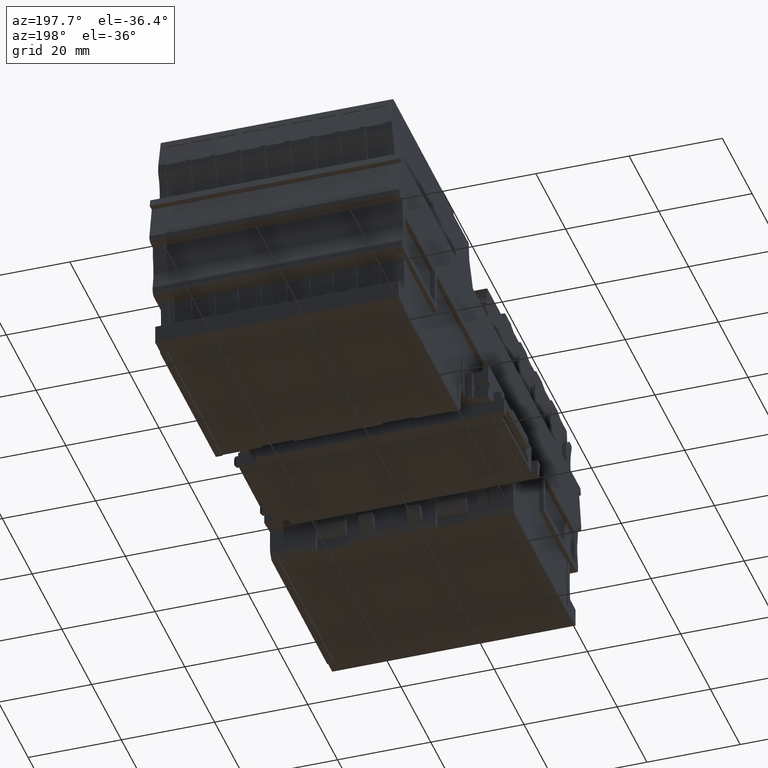
[diagram: clean part render]
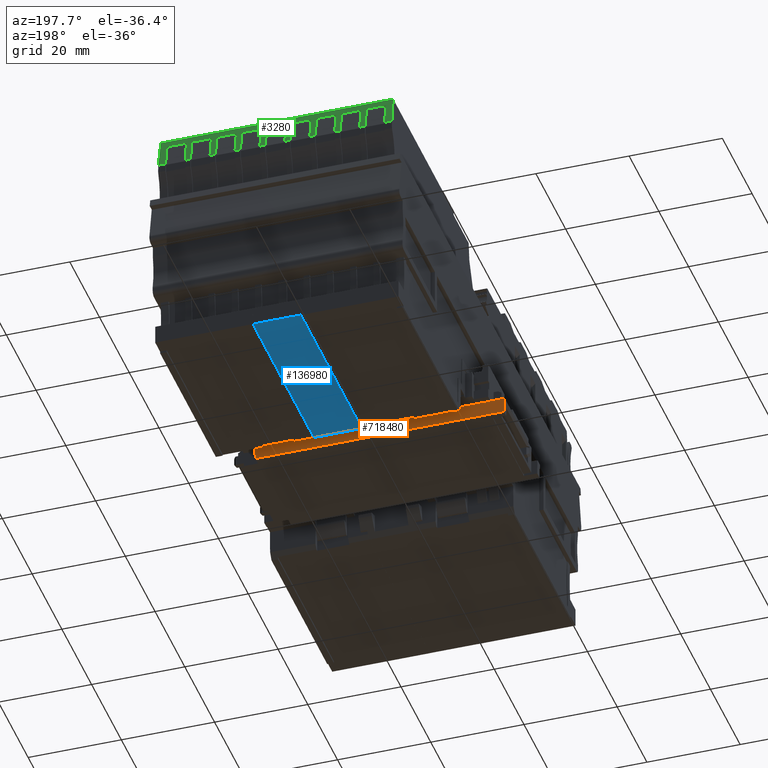
[diagram: same view with three faces highlighted in distinct colors, each labeled with its STEP entity id]
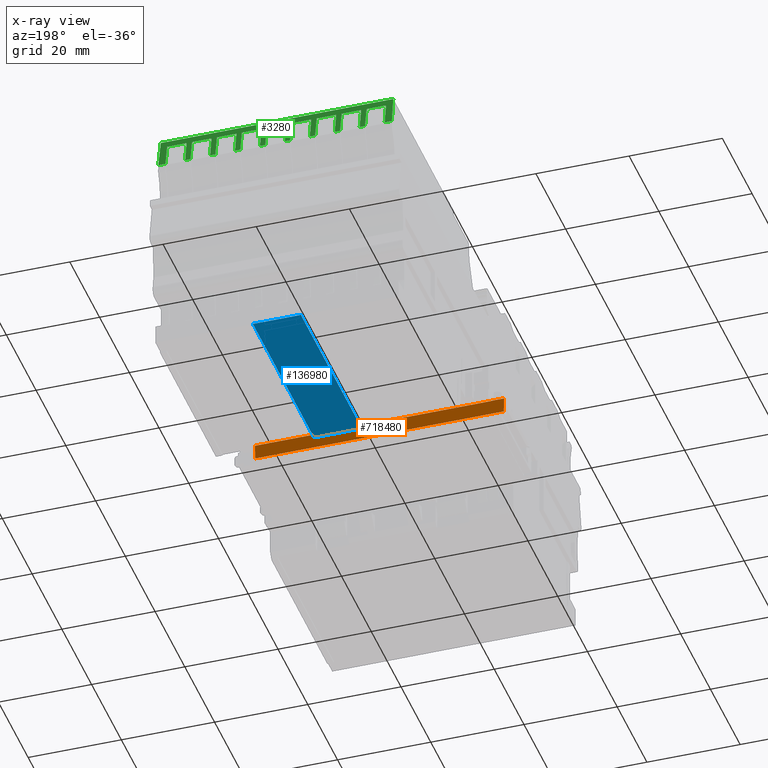
[diagram: x-ray of the same camera — body ghosted, the three highlighted faces saturated]
A machine part, auxiliary view with three faces highlighted in distinct colors.
The next image is the same camera in x-ray (body ghosted, the three faces saturated) — at least one of them is partly hidden behind the body in this view.
Their STEP definitions:

[orange] entity #718480 — the highlighted planar face has unit normal (-0, -1, -0).
#681770=CARTESIAN_POINT('',(-11.9819589819174,-3.69999999999349,
39.49999999986));
#681780=VERTEX_POINT('',#681770);
#681810=CARTESIAN_POINT('',(-11.9819589819181,2.24157943431103,
39.4999999998587));
#681820=DIRECTION('',(1.13686837721616E-13,-1.,1.96306567350832E-13));
#681830=VECTOR('',#681820,1.);
#681840=LINE('',#681810,#681830);
#681850=CARTESIAN_POINT('',(-11.9819589819174,-3.7500000001397,
39.49999999986));
#681860=VERTEX_POINT('',#681850);
#681870=EDGE_CURVE('',#681780,#681860,#681840,.T.);
#717440=CARTESIAN_POINT('',(-11.9819589821331,-7.00000000000997,
-11.0056969653756));
#717450=VERTEX_POINT('',#717440);
#717480=CARTESIAN_POINT('',(-11.981958982074,-7.00000000000997,
2.79999999999967));
#717490=DIRECTION('',(4.27836672665525E-12,-2.48094528084166E-16,1.));
#717500=VECTOR('',#717490,1.);
#717510=LINE('',#717480,#717500);
#717520=CARTESIAN_POINT('',(-11.9819589819049,-7.00000000000998,
42.3423982855966));
#717530=VERTEX_POINT('',#717520);
#717540=EDGE_CURVE('',#717450,#717530,#717510,.T.);
#717730=CARTESIAN_POINT('',(-11.9819589819052,2.24070364158749,
42.5036953676431));
#717740=DIRECTION('',(-3.90017879103866E-14,0.999847695156391,
0.0174524064372838));
#717750=VECTOR('',#717740,1.);
#717760=LINE('',#717730,#717750);
#717770=CARTESIAN_POINT('',(-11.981958981905,-3.69999999999349,
42.39999999986));
#717780=VERTEX_POINT('',#717770);
#717790=EDGE_CURVE('',#717530,#717780,#717760,.T.);
#718060=CARTESIAN_POINT('',(-11.9819589820744,-3.69999999999348,
2.79999999999967));
#718070=DIRECTION('',(-4.27836672665525E-12,2.48094525271832E-16,-1.));
#718080=VECTOR('',#718070,1.);
#718090=LINE('',#718060,#718080);
#718100=EDGE_CURVE('',#717780,#681780,#718090,.T.);
#718230=CARTESIAN_POINT('',(-11.9819589821388,-1.70027890184331,
-12.2000000144005));
#718240=DIRECTION('',(1.,1.13686837721616E-13,-4.27836672665525E-12));
#718250=DIRECTION('',(-4.27836672665525E-12,-7.60989826065005E-17,-1.));
#718260=AXIS2_PLACEMENT_3D('',#718230,#718240,#718250);
#718270=PLANE('',#718260);
#718280=ORIENTED_EDGE('',*,*,#717540,.T.);
#718290=CARTESIAN_POINT('',(-11.9819589821348,2.2407036415875,
-11.1669940474221));
#718300=DIRECTION('',(1.88337193063326E-13,-0.999847695156391,
0.0174524064372836));
#718310=VECTOR('',#718300,1.);
#718320=LINE('',#718290,#718310);
#718330=CARTESIAN_POINT('',(-11.9819589821337,-3.75000000013968,
-11.06242592639));
#718340=VERTEX_POINT('',#718330);
#718350=EDGE_CURVE('',#718340,#717450,#718320,.T.);
#718360=ORIENTED_EDGE('',*,*,#718350,.T.);
#718370=CARTESIAN_POINT('',(-11.9819589820742,-3.75000000013969,
2.79999999999967));
#718380=DIRECTION('',(4.27836672665525E-12,-2.48094533221733E-16,1.));
#718390=VECTOR('',#718380,1.);
#718400=LINE('',#718370,#718390);
#718410=EDGE_CURVE('',#718340,#681860,#718400,.T.);
#718420=ORIENTED_EDGE('',*,*,#718410,.F.);
#718430=ORIENTED_EDGE('',*,*,#681870,.T.);
#718440=ORIENTED_EDGE('',*,*,#718100,.T.);
#718450=ORIENTED_EDGE('',*,*,#717790,.T.);
#718460=EDGE_LOOP('',(#718450,#718440,#718430,#718420,#718360,#718280));
#718470=FACE_OUTER_BOUND('',#718460,.T.);
#718480=ADVANCED_FACE('',(#718470),#718270,.F.);

[blue] entity #136980 — the highlighted planar face has unit normal (-0, -0, -1).
#116380=CARTESIAN_POINT('',(43.3019921497185,-1.08877047973918,
-28.2356879205728));
#116390=VERTEX_POINT('',#116380);
#116980=CARTESIAN_POINT('',(43.3019921494129,-1.08877047978019,
-17.964312029289));
#116990=VERTEX_POINT('',#116980);
#117020=CARTESIAN_POINT('',(43.3019921488783,-1.08877047985192,0.));
#117030=DIRECTION('',(-2.9755266379796E-11,-3.99266373246629E-12,1.));
#117040=VECTOR('',#117030,1.);
#117050=LINE('',#117020,#117040);
#117060=EDGE_CURVE('',#116390,#116990,#117050,.T.);
#119730=CARTESIAN_POINT('',(84.0130941421063,3.9099243022775,0.));
#119740=DIRECTION('',(-7.53248026409569E-12,-5.85695866278797E-13,-1.));
#119750=VECTOR('',#119740,1.);
#119760=LINE('',#119730,#119750);
#119770=CARTESIAN_POINT('',(84.0130941419709,3.90992430226698,
-17.9643120286035));
#119780=VERTEX_POINT('',#119770);
#119790=CARTESIAN_POINT('',(84.0130941418936,3.90992430226097,
-28.235687919424));
#119800=VERTEX_POINT('',#119790);
#119810=EDGE_CURVE('',#119780,#119800,#119760,.T.);
#136590=CARTESIAN_POINT('',(0.,-6.40558657208207,-28.2356879217947));
#136600=DIRECTION('',(0.99254615164127,0.121869343405569,
2.80076634875013E-11));
#136610=VECTOR('',#136600,1.);
#136620=LINE('',#136590,#136610);
#136630=EDGE_CURVE('',#116390,#119800,#136620,.T.);
#136820=CARTESIAN_POINT('',(-13.7160918481336,-8.08971088696673,
-23.099999976854));
#136830=DIRECTION('',(0.121869343405569,-0.99254615164127,
-3.36648245893532E-13));
#136840=DIRECTION('',(-0.99254615164127,-0.121869343405569,
2.32416237564204E-12));
#136850=AXIS2_PLACEMENT_3D('',#136820,#136830,#136840);
#136860=PLANE('',#136850);
#136870=CARTESIAN_POINT('',(0.,-6.40558657208555,-17.9643120300181));
#136880=DIRECTION('',(-0.99254615164127,-0.121869343405569,
-1.67126223272076E-11));
#136890=VECTOR('',#136880,1.);
#136900=LINE('',#136870,#136890);
#136910=EDGE_CURVE('',#119780,#116990,#136900,.T.);
#136920=ORIENTED_EDGE('',*,*,#136910,.T.);
#136930=ORIENTED_EDGE('',*,*,#119810,.F.);
#136940=ORIENTED_EDGE('',*,*,#136630,.T.);
#136950=ORIENTED_EDGE('',*,*,#117060,.F.);
#136960=EDGE_LOOP('',(#136950,#136940,#136930,#136920));
#136970=FACE_OUTER_BOUND('',#136960,.T.);
#136980=ADVANCED_FACE('',(#136970),#136860,.T.);

[green] entity #3280 — the highlighted planar face has unit normal (0, -0.9806, -0.1959).
#10=CARTESIAN_POINT('',(79.711566566174,48.1340949712596,
-60.2600023582337));
#20=DIRECTION('',(-0.94942547764215,-0.313992455966661,
8.89765746389697E-12));
#30=DIRECTION('',(-0.313992455966661,0.94942547764215,
1.0507353250525E-12));
#40=AXIS2_PLACEMENT_3D('',#10,#20,#30);
#50=PLANE('',#40);
#60=CARTESIAN_POINT('',(95.6303964815167,0.,-46.7580297107765));
#70=DIRECTION('',(-0.313990926729722,0.949420853656905,
0.00312098907474676));
#80=VECTOR('',#70,1.);
#90=LINE('',#60,#80);
#100=CARTESIAN_POINT('',(79.8668860546115,47.6644522248393,
-46.6013444704276));
#110=VERTEX_POINT('',#100);
#120=CARTESIAN_POINT('',(78.258615662083,52.5274126450298,
-46.5853586762628));
#130=VERTEX_POINT('',#120);
#140=EDGE_CURVE('',#110,#130,#90,.T.);
#150=ORIENTED_EDGE('',*,*,#140,.F.);
#160=CARTESIAN_POINT('',(78.2586156624916,52.5274126451144,0.));
#170=DIRECTION('',(8.77071152583466E-12,1.81698787145532E-12,1.));
#180=VECTOR('',#170,1.);
#190=LINE('',#160,#180);
#200=CARTESIAN_POINT('',(78.2586156621196,52.5274126450374,
-42.4146412402762));
#210=VERTEX_POINT('',#200);
#220=EDGE_CURVE('',#130,#210,#190,.T.);
#230=ORIENTED_EDGE('',*,*,#220,.F.);
#240=CARTESIAN_POINT('',(95.630396481559,0.,-42.2419702058601));
#250=DIRECTION('',(-0.313990926729776,0.949420853656893,
-0.00312098907298156));
#260=VECTOR('',#250,1.);
#270=LINE('',#240,#260);
#280=CARTESIAN_POINT('',(79.8668860546365,47.6644522248829,
-42.3986554461205));
#290=VERTEX_POINT('',#280);
#300=EDGE_CURVE('',#290,#210,#270,.T.);
#310=ORIENTED_EDGE('',*,*,#300,.T.);
#320=CARTESIAN_POINT('',(79.8668860550086,47.664452224959,0.));
#330=DIRECTION('',(-8.7775856528408E-12,-1.79620243157562E-12,-1.));
#340=VECTOR('',#330,1.);
#350=LINE('',#320,#340);
#360=CARTESIAN_POINT('',(79.8668860546466,47.6644522248849,
-41.251344470921));
#370=VERTEX_POINT('',#360);
#380=EDGE_CURVE('',#370,#290,#350,.T.);
#390=ORIENTED_EDGE('',*,*,#380,.T.);
#400=CARTESIAN_POINT('',(95.6303964815668,0.,-41.4080297112812));
#410=DIRECTION('',(0.313990926729722,-0.949420853656904,
-0.00312098907496915));
#420=VECTOR('',#410,1.);
#430=LINE('',#400,#420);
#440=CARTESIAN_POINT('',(78.2586156621299,52.5274126450395,
-41.2353586767552));
#450=VERTEX_POINT('',#440);
#460=EDGE_CURVE('',#450,#370,#430,.T.);
#470=ORIENTED_EDGE('',*,*,#460,.T.);
#480=CARTESIAN_POINT('',(78.2586156624916,52.5274126451145,0.));
#490=DIRECTION('',(8.77071152583466E-12,1.81698787145532E-12,1.));
#500=VECTOR('',#490,1.);
#510=LINE('',#480,#500);
#520=CARTESIAN_POINT('',(78.2586156621665,52.5274126450471,
-37.0646412402782));
#530=VERTEX_POINT('',#520);
#540=EDGE_CURVE('',#450,#530,#510,.T.);
#550=ORIENTED_EDGE('',*,*,#540,.F.);
#560=CARTESIAN_POINT('',(95.6303964816092,0.,-36.8919702058684));
#570=DIRECTION('',(-0.313990926729777,0.949420853656893,
-0.00312098907286766));
#580=VECTOR('',#570,1.);
#590=LINE('',#560,#580);
#600=CARTESIAN_POINT('',(79.8668860547245,47.6644522247683,
-37.0486554461227));
#610=VERTEX_POINT('',#600);
#620=EDGE_CURVE('',#610,#530,#590,.T.);
#630=ORIENTED_EDGE('',*,*,#620,.T.);
#640=CARTESIAN_POINT('',(79.8668860550497,47.6644522248348,0.));
#650=DIRECTION('',(-8.7775856528408E-12,-1.79620243157562E-12,-1.));
#660=VECTOR('',#650,1.);
#670=LINE('',#640,#660);
#680=CARTESIAN_POINT('',(79.8668860547346,47.6644522247703,
-35.9013444709216));
#690=VERTEX_POINT('',#680);
#700=EDGE_CURVE('',#690,#610,#670,.T.);
#710=ORIENTED_EDGE('',*,*,#700,.T.);
#720=CARTESIAN_POINT('',(95.630396481617,0.,-36.0580297112814));
#730=DIRECTION('',(0.313990926729722,-0.949420853656904,
-0.00312098907496915));
#740=VECTOR('',#730,1.);
#750=LINE('',#720,#740);
#760=CARTESIAN_POINT('',(78.2586156621768,52.5274126450492,
-35.8853586767553));
#770=VERTEX_POINT('',#760);
#780=EDGE_CURVE('',#770,#690,#750,.T.);
#790=ORIENTED_EDGE('',*,*,#780,.T.);
#800=CARTESIAN_POINT('',(78.2586156624916,52.5274126451144,0.));
#810=DIRECTION('',(8.77071152583466E-12,1.81698787145532E-12,1.));
#820=VECTOR('',#810,1.);
#830=LINE('',#800,#820);
#840=CARTESIAN_POINT('',(78.2586156622134,52.5274126450568,
-31.714641240278));
#850=VERTEX_POINT('',#840);
#860=EDGE_CURVE('',#770,#850,#830,.T.);
#870=ORIENTED_EDGE('',*,*,#860,.F.);
#880=CARTESIAN_POINT('',(95.6303964816593,0.,-31.5419702058682));
#890=DIRECTION('',(-0.313990926729777,0.949420853656893,
-0.00312098907286766));
#900=VECTOR('',#890,1.);
#910=LINE('',#880,#900);
#920=CARTESIAN_POINT('',(79.8668860546964,47.664452225005,
-31.6986554461233));
#930=VERTEX_POINT('',#920);
#940=EDGE_CURVE('',#930,#850,#910,.T.);
#950=ORIENTED_EDGE('',*,*,#940,.T.);
#960=CARTESIAN_POINT('',(79.8668860549746,47.664452225062,0.));
#970=DIRECTION('',(-8.7775856528408E-12,-1.79620243157562E-12,-1.));
#980=VECTOR('',#970,1.);
#990=LINE('',#960,#980);
#1000=CARTESIAN_POINT('',(79.8668860547064,47.6644522250071,
-30.551344470921));
#1010=VERTEX_POINT('',#1000);
#1020=EDGE_CURVE('',#1010,#930,#990,.T.);
#1030=ORIENTED_EDGE('',*,*,#1020,.T.);
#1040=CARTESIAN_POINT('',(95.6303964816671,0.,-30.7080297112816));
#1050=DIRECTION('',(0.313990926729722,-0.949420853656904,
-0.00312098907496915));
#1060=VECTOR('',#1050,1.);
#1070=LINE('',#1040,#1060);
#1080=CARTESIAN_POINT('',(78.2586156622237,52.527412645059,
-30.5353586767555));
#1090=VERTEX_POINT('',#1080);
#1100=EDGE_CURVE('',#1090,#1010,#1070,.T.);
#1110=ORIENTED_EDGE('',*,*,#1100,.T.);
#1120=CARTESIAN_POINT('',(78.2586156624916,52.5274126451144,0.));
#1130=DIRECTION('',(8.77071152583466E-12,1.81698787145532E-12,1.));
#1140=VECTOR('',#1130,1.);
#1150=LINE('',#1120,#1140);
#1160=CARTESIAN_POINT('',(78.2586156622604,52.5274126450665,
-26.3646412402758));
#1170=VERTEX_POINT('',#1160);
#1180=EDGE_CURVE('',#1090,#1170,#1150,.T.);
#1190=ORIENTED_EDGE('',*,*,#1180,.F.);
#1200=CARTESIAN_POINT('',(95.6303964817095,0.,-26.1919702058596));
#1210=DIRECTION('',(-0.313990926729776,0.949420853656893,
-0.00312098907298156));
#1220=VECTOR('',#1210,1.);
#1230=LINE('',#1200,#1220);
#1240=CARTESIAN_POINT('',(79.8668860547433,47.6644522250146,
-26.3486554461205));
#1250=VERTEX_POINT('',#1240);
#1260=EDGE_CURVE('',#1250,#1170,#1230,.T.);
#1270=ORIENTED_EDGE('',*,*,#1260,.T.);
#1280=CARTESIAN_POINT('',(79.8668860549746,47.6644522250619,0.));
#1290=DIRECTION('',(-8.7775856528408E-12,-1.79620243157562E-12,-1.));
#1300=VECTOR('',#1290,1.);
#1310=LINE('',#1280,#1300);
#1320=CARTESIAN_POINT('',(79.8668860547534,47.6644522250167,
-25.201344470921));
#1330=VERTEX_POINT('',#1320);
#1340=EDGE_CURVE('',#1330,#1250,#1310,.T.);
#1350=ORIENTED_EDGE('',*,*,#1340,.T.);
#1360=CARTESIAN_POINT('',(95.6303964817173,0.,-25.3580297112817));
#1370=DIRECTION('',(0.313990926729722,-0.949420853656904,
-0.00312098907496915));
#1380=VECTOR('',#1370,1.);
#1390=LINE('',#1360,#1380);
#1400=CARTESIAN_POINT('',(78.2586156622707,52.5274126450687,
-25.1853586767555));
#1410=VERTEX_POINT('',#1400);
#1420=EDGE_CURVE('',#1410,#1330,#1390,.T.);
#1430=ORIENTED_EDGE('',*,*,#1420,.T.);
#1440=CARTESIAN_POINT('',(78.2586156624916,52.5274126451144,0.));
#1450=DIRECTION('',(8.77071152583466E-12,1.81698787145532E-12,1.));
#1460=VECTOR('',#1450,1.);
#1470=LINE('',#1440,#1460);
#1480=CARTESIAN_POINT('',(78.2586156623073,52.5274126450763,
-21.0146412402779));
#1490=VERTEX_POINT('',#1480);
#1500=EDGE_CURVE('',#1410,#1490,#1470,.T.);
#1510=ORIENTED_EDGE('',*,*,#1500,.F.);
#1520=CARTESIAN_POINT('',(95.6303964817596,0.,-20.841970205868));
#1530=DIRECTION('',(-0.313990926729777,0.949420853656893,
-0.00312098907286766));
#1540=VECTOR('',#1530,1.);
#1550=LINE('',#1520,#1540);
#1560=CARTESIAN_POINT('',(79.8668860548314,47.6644522248999,
-20.9986554461227));
#1570=VERTEX_POINT('',#1560);
#1580=EDGE_CURVE('',#1570,#1490,#1550,.T.);
#1590=ORIENTED_EDGE('',*,*,#1580,.T.);
#1600=CARTESIAN_POINT('',(79.8668860550157,47.6644522249376,0.));
#1610=DIRECTION('',(-8.7775856528408E-12,-1.79620243157562E-12,-1.));
#1620=VECTOR('',#1610,1.);
#1630=LINE('',#1600,#1620);
#1640=CARTESIAN_POINT('',(79.8668860548415,47.664452224902,
-19.8513444709216));
#1650=VERTEX_POINT('',#1640);
#1660=EDGE_CURVE('',#1650,#1570,#1630,.T.);
#1670=ORIENTED_EDGE('',*,*,#1660,.T.);
#1680=CARTESIAN_POINT('',(95.6303964817674,0.,-20.0080297112819));
#1690=DIRECTION('',(0.313990926729722,-0.949420853656904,
-0.00312098907496915));
#1700=VECTOR('',#1690,1.);
#1710=LINE('',#1680,#1700);
#1720=CARTESIAN_POINT('',(78.258615662318,52.5274126450774,
-19.8353586767557));
#1730=VERTEX_POINT('',#1720);
#1740=EDGE_CURVE('',#1730,#1650,#1710,.T.);
#1750=ORIENTED_EDGE('',*,*,#1740,.T.);
#1760=CARTESIAN_POINT('',(78.2586156624919,52.5274126451134,0.));
#1770=DIRECTION('',(8.77071152583466E-12,1.81698787145532E-12,1.));
#1780=VECTOR('',#1770,1.);
#1790=LINE('',#1760,#1780);
#1800=CARTESIAN_POINT('',(78.2586156623545,52.5274126450849,
-15.6646412402757));
#1810=VERTEX_POINT('',#1800);
#1820=EDGE_CURVE('',#1730,#1810,#1790,.T.);
#1830=ORIENTED_EDGE('',*,*,#1820,.F.);
#1840=CARTESIAN_POINT('',(95.6303964818097,0.,-15.4919702058595));
#1850=DIRECTION('',(-0.313990926729776,0.949420853656893,
-0.00312098907298139));
#1860=VECTOR('',#1850,1.);
#1870=LINE('',#1840,#1860);
#1880=CARTESIAN_POINT('',(79.8668860548771,47.6644522249135,
-15.64865544612));
#1890=VERTEX_POINT('',#1880);
#1900=EDGE_CURVE('',#1890,#1810,#1870,.T.);
#1910=ORIENTED_EDGE('',*,*,#1900,.T.);
#1920=CARTESIAN_POINT('',(79.8668860550144,47.6644522249416,0.));
#1930=DIRECTION('',(-8.7775856528408E-12,-1.79620243157562E-12,-1.));
#1940=VECTOR('',#1930,1.);
#1950=LINE('',#1920,#1940);
#1960=CARTESIAN_POINT('',(79.8668860548871,47.6644522249156,
-14.5013444709192));
#1970=VERTEX_POINT('',#1960);
#1980=EDGE_CURVE('',#1970,#1890,#1950,.T.);
#1990=ORIENTED_EDGE('',*,*,#1980,.T.);
#2000=CARTESIAN_POINT('',(95.6303964818176,0.,-14.6580297112738));
#2010=DIRECTION('',(0.313990926729722,-0.949420853656904,
-0.00312098907485533));
#2020=VECTOR('',#2010,1.);
#2030=LINE('',#2000,#2020);
#2040=CARTESIAN_POINT('',(78.2586156623645,52.5274126450881,
-14.4853586767539));
#2050=VERTEX_POINT('',#2040);
#2060=EDGE_CURVE('',#2050,#1970,#2030,.T.);
#2070=ORIENTED_EDGE('',*,*,#2060,.T.);
#2080=CARTESIAN_POINT('',(78.2586156624916,52.5274126451144,0.));
#2090=DIRECTION('',(8.77071152583466E-12,1.81698787145532E-12,1.));
#2100=VECTOR('',#2090,1.);
#2110=LINE('',#2080,#2100);
#2120=CARTESIAN_POINT('',(78.2586156624011,52.5274126450957,
-10.3146412402754));
#2130=VERTEX_POINT('',#2120);
#2140=EDGE_CURVE('',#2050,#2130,#2110,.T.);
#2150=ORIENTED_EDGE('',*,*,#2140,.F.);
#2160=CARTESIAN_POINT('',(95.6303964818599,0.,-10.1419702058591));
#2170=DIRECTION('',(-0.313990926729776,0.949420853656893,
-0.00312098907298156));
#2180=VECTOR('',#2170,1.);
#2190=LINE('',#2160,#2180);
#2200=CARTESIAN_POINT('',(79.8668860548503,47.664452225146,
-10.2986554461204));
#2210=VERTEX_POINT('',#2200);
#2220=EDGE_CURVE('',#2210,#2130,#2190,.T.);
#2230=ORIENTED_EDGE('',*,*,#2220,.T.);
#2240=CARTESIAN_POINT('',(79.8668860549408,47.6644522251644,0.));
#2250=DIRECTION('',(-8.7775856528408E-12,-1.79620243157562E-12,-1.));
#2260=VECTOR('',#2250,1.);
#2270=LINE('',#2240,#2260);
#2280=CARTESIAN_POINT('',(79.8668860548604,47.664452225148,
-9.15134447092104));
#2290=VERTEX_POINT('',#2280);
#2300=EDGE_CURVE('',#2290,#2210,#2270,.T.);
#2310=ORIENTED_EDGE('',*,*,#2300,.T.);
#2320=CARTESIAN_POINT('',(95.6303964818677,0.,-9.30802971128214));
#2330=DIRECTION('',(0.313990926729722,-0.949420853656904,
-0.00312098907496915));
#2340=VECTOR('',#2330,1.);
#2350=LINE('',#2320,#2340);
#2360=CARTESIAN_POINT('',(78.2586156624114,52.527412645098,
-9.13535867675588));
#2370=VERTEX_POINT('',#2360);
#2380=EDGE_CURVE('',#2370,#2290,#2350,.T.);
#2390=ORIENTED_EDGE('',*,*,#2380,.T.);
#2400=CARTESIAN_POINT('',(78.2586156624916,52.5274126451144,0.));
#2410=DIRECTION('',(8.77071152583466E-12,1.81698787145532E-12,1.));
#2420=VECTOR('',#2410,1.);
#2430=LINE('',#2400,#2420);
#2440=CARTESIAN_POINT('',(78.258615662448,52.5274126451054,
-4.96464124027744));
#2450=VERTEX_POINT('',#2440);
#2460=EDGE_CURVE('',#2370,#2450,#2430,.T.);
#2470=ORIENTED_EDGE('',*,*,#2460,.F.);
#2480=CARTESIAN_POINT('',(95.63039648191,0.,-4.79197020586742));
#2490=DIRECTION('',(-0.313990926729777,0.949420853656893,
-0.00312098907286766));
#2500=VECTOR('',#2490,1.);
#2510=LINE('',#2480,#2500);
#2520=CARTESIAN_POINT('',(79.8668860549384,47.6644522250311,
-4.94865544612264));
#2530=VERTEX_POINT('',#2520);
#2540=EDGE_CURVE('',#2530,#2450,#2510,.T.);
#2550=ORIENTED_EDGE('',*,*,#2540,.T.);
#2560=CARTESIAN_POINT('',(79.8668860549819,47.66445222504,0.));
#2570=DIRECTION('',(-8.7775856528408E-12,-1.79620243157562E-12,-1.));
#2580=VECTOR('',#2570,1.);
#2590=LINE('',#2560,#2580);
#2600=CARTESIAN_POINT('',(79.8668860549485,47.6644522250332,
-3.80134447092159));
#2610=VERTEX_POINT('',#2600);
#2620=EDGE_CURVE('',#2610,#2530,#2590,.T.);
#2630=ORIENTED_EDGE('',*,*,#2620,.T.);
#2640=CARTESIAN_POINT('',(95.6303964819178,0.,-3.95802971128232));
#2650=DIRECTION('',(0.313990926729722,-0.949420853656904,
-0.00312098907496915));
#2660=VECTOR('',#2650,1.);
#2670=LINE('',#2640,#2660);
#2680=CARTESIAN_POINT('',(78.2586156624584,52.5274126451076,
-3.78535867675602));
#2690=VERTEX_POINT('',#2680);
#2700=EDGE_CURVE('',#2690,#2610,#2670,.T.);
#2710=ORIENTED_EDGE('',*,*,#2700,.T.);
#2720=CARTESIAN_POINT('',(78.2586156624916,52.5274126451144,0.));
#2730=DIRECTION('',(8.77071152583466E-12,1.81698787145532E-12,1.));
#2740=VECTOR('',#2730,1.);
#2750=LINE('',#2720,#2740);
#2760=CARTESIAN_POINT('',(78.2586156624949,52.5274126451152,
0.38535875972585));
#2770=VERTEX_POINT('',#2760);
#2780=EDGE_CURVE('',#2690,#2770,#2750,.T.);
#2790=ORIENTED_EDGE('',*,*,#2780,.F.);
#2800=CARTESIAN_POINT('',(95.6303964819602,0.,0.558029794152238));
#2810=DIRECTION('',(-0.313990926729776,0.949420853656892,
-0.00312098907316284));
#2820=VECTOR('',#2810,1.);
#2830=LINE('',#2800,#2820);
#2840=CARTESIAN_POINT('',(79.8668860549708,47.6644522250848,
0.401344553882024));
#2850=VERTEX_POINT('',#2840);
#2860=EDGE_CURVE('',#2850,#2770,#2830,.T.);
#2870=ORIENTED_EDGE('',*,*,#2860,.T.);
#2880=CARTESIAN_POINT('',(79.8668860549673,47.6644522250841,0.));
#2890=DIRECTION('',(8.7775856528408E-12,1.79620243157562E-12,1.));
#2900=VECTOR('',#2890,1.);
#2910=LINE('',#2880,#2900);
#2920=CARTESIAN_POINT('',(79.8668860549844,47.6644522250876,
1.95174220438328));
#2930=VERTEX_POINT('',#2920);
#2940=EDGE_CURVE('',#2850,#2930,#2910,.T.);
#2950=ORIENTED_EDGE('',*,*,#2940,.F.);
#2960=CARTESIAN_POINT('',(95.6303964819813,0.,2.81105954182757));
#2970=DIRECTION('',(0.313946469134006,-0.949286426305465,
0.0171141856508206));
#2980=VECTOR('',#2970,1.);
#2990=LINE('',#2960,#2980);
#3000=CARTESIAN_POINT('',(77.7835661800199,53.9638295820345,
1.83817404351644));
#3010=VERTEX_POINT('',#3000);
#3020=EDGE_CURVE('',#3010,#2930,#2990,.T.);
#3030=ORIENTED_EDGE('',*,*,#3020,.T.);
#3040=CARTESIAN_POINT('',(77.7835661800038,53.9638295820312,0.));
#3050=DIRECTION('',(8.77981026340904E-12,1.78947583062968E-12,1.));
#3060=VECTOR('',#3050,1.);
#3070=LINE('',#3040,#3060);
#3080=CARTESIAN_POINT('',(77.783566179582,53.9638295819453,
-48.0381739841063));
#3090=VERTEX_POINT('',#3080);
#3100=EDGE_CURVE('',#3090,#3010,#3070,.T.);
#3110=ORIENTED_EDGE('',*,*,#3100,.T.);
#3120=CARTESIAN_POINT('',(95.6303964814956,0.,-49.0110594824913));
#3130=DIRECTION('',(-0.313946469133709,0.949286426305539,
0.0171141856521505));
#3140=VECTOR('',#3130,1.);
#3150=LINE('',#3120,#3140);
#3160=CARTESIAN_POINT('',(79.8668860545979,47.6644522248366,
-48.1517421449849));
#3170=VERTEX_POINT('',#3160);
#3180=EDGE_CURVE('',#3170,#3090,#3150,.T.);
#3190=ORIENTED_EDGE('',*,*,#3180,.T.);
#3200=CARTESIAN_POINT('',(79.8668860550206,47.664452224923,0.));
#3210=DIRECTION('',(-8.7775856528408E-12,-1.79620243157562E-12,-1.));
#3220=VECTOR('',#3210,1.);
#3230=LINE('',#3200,#3220);
#3240=EDGE_CURVE('',#110,#3170,#3230,.T.);
#3250=ORIENTED_EDGE('',*,*,#3240,.T.);
#3260=EDGE_LOOP('',(#3250,#3190,#3110,#3030,#2950,#2870,#2790,#2710,
#2630,#2550,#2470,#2390,#2310,#2230,#2150,#2070,#1990,#1910,#1830,#1750,
#1670,#1590,#1510,#1430,#1350,#1270,#1190,#1110,#1030,#950,#870,#790,
#710,#630,#550,#470,#390,#310,#230,#150));
#3270=FACE_OUTER_BOUND('',#3260,.T.);
#3280=ADVANCED_FACE('',(#3270),#50,.F.);